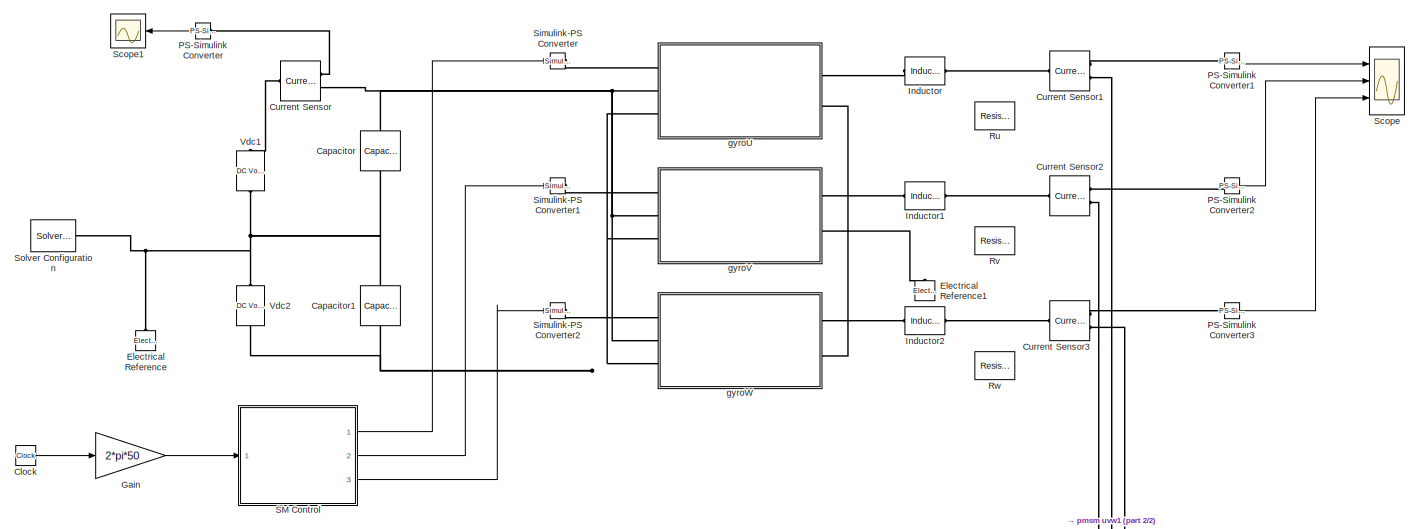
[diagram: root canvas - part 1/2, full width, top band]
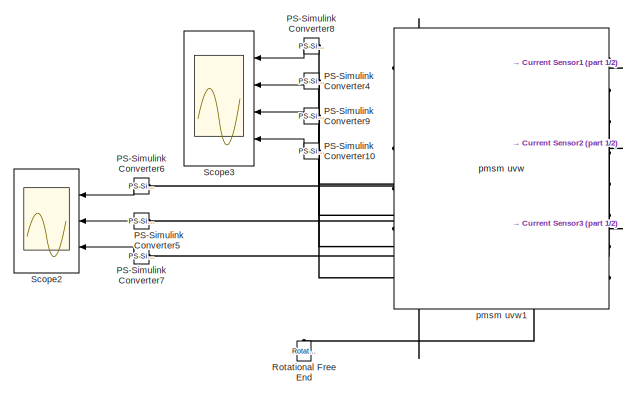
[diagram: root canvas - part 2/2, bottom center region]
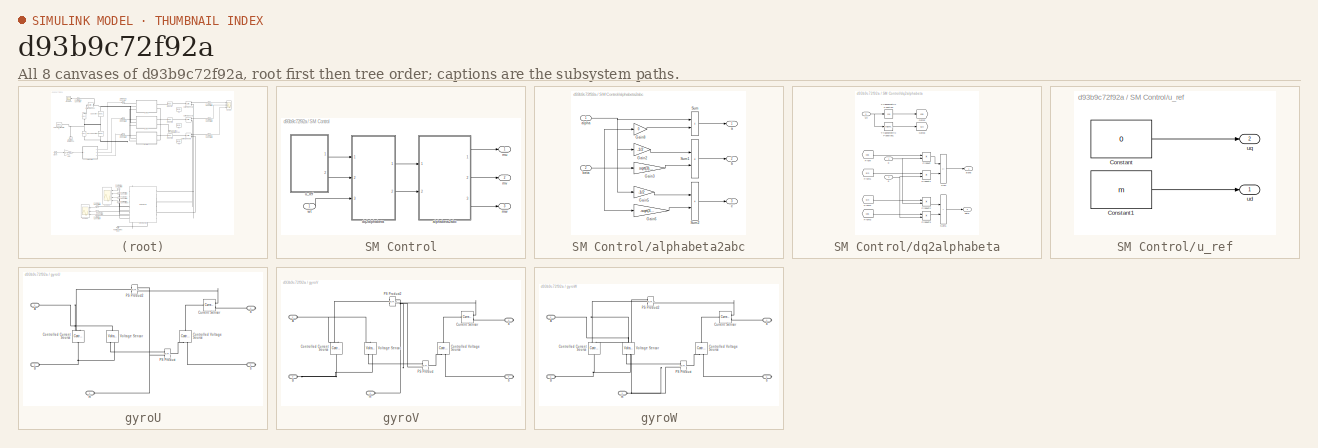
[diagram: thumbnail index - all 8 canvases of the model, root first then tree order]
MODEL slx_d93b9c72f92a
KIND model
CONFIG AbsTol = auto
CONFIG EnableMultiTasking = off
CONFIG FixedStep = auto
CONFIG MaxStep = auto
CONFIG MinStep = auto
CONFIG RelTol = 1e-3
CONFIG SampleTimeConstraint = Unconstrained
CONFIG Solver = daessc
CONFIG SolverName = daessc
CONFIG StartTime = 0.0
CONFIG StopTime = 0.35
BLOCK [Reference] Capacitor  REF=fl_lib/Electrical/Electrical Elements/Capacitor
  NameLocation = left
  Ports = [0, 0, 0, 0, 0, 1, 1]
  SourceBlock = fl_lib/Electrical/Electrical Elements/Capacitor
  SourceProductBaseCode = SS
  SourceType = Capacitor
BLOCK [Reference] Capacitor1  REF=fl_lib/Electrical/Electrical Elements/Capacitor
  NameLocation = left
  Ports = [0, 0, 0, 0, 0, 1, 1]
  SourceBlock = fl_lib/Electrical/Electrical Elements/Capacitor
  SourceProductBaseCode = SS
  SourceType = Capacitor
BLOCK [Clock] Clock
  Decimation = 1
BLOCK [Reference] Current Sensor  REF=fl_lib/Electrical/Electrical Sensors/Current Sensor
  Ports = [0, 0, 0, 0, 0, 1, 2]
  SourceBlock = fl_lib/Electrical/Electrical Sensors/Current Sensor
  SourceProductBaseCode = SS
  SourceType = Current Sensor
BLOCK [Reference] Current Sensor1  REF=fl_lib/Electrical/Electrical Sensors/Current Sensor
  Ports = [0, 0, 0, 0, 0, 1, 2]
  SourceBlock = fl_lib/Electrical/Electrical Sensors/Current Sensor
  SourceProductBaseCode = SS
  SourceType = Current Sensor
BLOCK [Reference] Current Sensor2  REF=fl_lib/Electrical/Electrical Sensors/Current Sensor
  Ports = [0, 0, 0, 0, 0, 1, 2]
  SourceBlock = fl_lib/Electrical/Electrical Sensors/Current Sensor
  SourceProductBaseCode = SS
  SourceType = Current Sensor
BLOCK [Reference] Current Sensor3  REF=fl_lib/Electrical/Electrical Sensors/Current Sensor
  Ports = [0, 0, 0, 0, 0, 1, 2]
  SourceBlock = fl_lib/Electrical/Electrical Sensors/Current Sensor
  SourceProductBaseCode = SS
  SourceType = Current Sensor
BLOCK [Reference] Electrical Reference  REF=fl_lib/Electrical/Electrical Elements/Electrical Reference
  NameLocation = right
  Ports = [0, 0, 0, 0, 0, 1]
  SourceBlock = fl_lib/Electrical/Electrical Elements/Electrical Reference
  SourceProductBaseCode = SS
  SourceType = Electrical Reference
BLOCK [Reference] Electrical Reference1  REF=fl_lib/Electrical/Electrical Elements/Electrical Reference
  NameLocation = right
  Ports = [0, 0, 0, 0, 0, 1]
  SourceBlock = fl_lib/Electrical/Electrical Elements/Electrical Reference
  SourceProductBaseCode = SS
  SourceType = Electrical Reference
BLOCK [Gain] Gain
  Gain = 2*pi*50
BLOCK [Reference] Inductor  REF=fl_lib/Electrical/Electrical Elements/Inductor
  Ports = [0, 0, 0, 0, 0, 1, 1]
  SourceBlock = fl_lib/Electrical/Electrical Elements/Inductor
  SourceProductBaseCode = SS
  SourceType = Inductor
BLOCK [Reference] Inductor1  REF=fl_lib/Electrical/Electrical Elements/Inductor
  Ports = [0, 0, 0, 0, 0, 1, 1]
  SourceBlock = fl_lib/Electrical/Electrical Elements/Inductor
  SourceProductBaseCode = SS
  SourceType = Inductor
BLOCK [Reference] Inductor2  REF=fl_lib/Electrical/Electrical Elements/Inductor
  Ports = [0, 0, 0, 0, 0, 1, 1]
  SourceBlock = fl_lib/Electrical/Electrical Elements/Inductor
  SourceProductBaseCode = SS
  SourceType = Inductor
BLOCK [Reference] PS-Simulink Converter  REF=nesl_utility/PS-Simulink
Converter
  NameLocation = top
  Ports = [0, 1, 0, 0, 0, 1]
  SourceBlock = nesl_utility/PS-Simulink\nConverter
  SourceProductBaseCode = SS
  SourceType = PS-Simulink\nConverter
BLOCK [Reference] PS-Simulink Converter1  REF=nesl_utility/PS-Simulink
Converter
  Ports = [0, 1, 0, 0, 0, 1]
  SourceBlock = nesl_utility/PS-Simulink\nConverter
  SourceProductBaseCode = SS
  SourceType = PS-Simulink\nConverter
BLOCK [Reference] PS-Simulink Converter10  REF=nesl_utility/PS-Simulink
Converter
  NameLocation = top
  Ports = [0, 1, 0, 0, 0, 1]
  SourceBlock = nesl_utility/PS-Simulink\nConverter
  SourceProductBaseCode = SS
  SourceType = PS-Simulink\nConverter
BLOCK [Reference] PS-Simulink Converter2  REF=nesl_utility/PS-Simulink
Converter
  Ports = [0, 1, 0, 0, 0, 1]
  SourceBlock = nesl_utility/PS-Simulink\nConverter
  SourceProductBaseCode = SS
  SourceType = PS-Simulink\nConverter
BLOCK [Reference] PS-Simulink Converter3  REF=nesl_utility/PS-Simulink
Converter
  Ports = [0, 1, 0, 0, 0, 1]
  SourceBlock = nesl_utility/PS-Simulink\nConverter
  SourceProductBaseCode = SS
  SourceType = PS-Simulink\nConverter
BLOCK [Reference] PS-Simulink Converter4  REF=nesl_utility/PS-Simulink
Converter
  NameLocation = top
  Ports = [0, 1, 0, 0, 0, 1]
  SourceBlock = nesl_utility/PS-Simulink\nConverter
  SourceProductBaseCode = SS
  SourceType = PS-Simulink\nConverter
BLOCK [Reference] PS-Simulink Converter5  REF=nesl_utility/PS-Simulink
Converter
  NameLocation = top
  Ports = [0, 1, 0, 0, 0, 1]
  SourceBlock = nesl_utility/PS-Simulink\nConverter
  SourceProductBaseCode = SS
  SourceType = PS-Simulink\nConverter
BLOCK [Reference] PS-Simulink Converter6  REF=nesl_utility/PS-Simulink
Converter
  NameLocation = top
  Ports = [0, 1, 0, 0, 0, 1]
  SourceBlock = nesl_utility/PS-Simulink\nConverter
  SourceProductBaseCode = SS
  SourceType = PS-Simulink\nConverter
BLOCK [Reference] PS-Simulink Converter7  REF=nesl_utility/PS-Simulink
Converter
  NameLocation = top
  Ports = [0, 1, 0, 0, 0, 1]
  SourceBlock = nesl_utility/PS-Simulink\nConverter
  SourceProductBaseCode = SS
  SourceType = PS-Simulink\nConverter
BLOCK [Reference] PS-Simulink Converter8  REF=nesl_utility/PS-Simulink
Converter
  NameLocation = top
  Ports = [0, 1, 0, 0, 0, 1]
  SourceBlock = nesl_utility/PS-Simulink\nConverter
  SourceProductBaseCode = SS
  SourceType = PS-Simulink\nConverter
BLOCK [Reference] PS-Simulink Converter9  REF=nesl_utility/PS-Simulink
Converter
  NameLocation = top
  Ports = [0, 1, 0, 0, 0, 1]
  SourceBlock = nesl_utility/PS-Simulink\nConverter
  SourceProductBaseCode = SS
  SourceType = PS-Simulink\nConverter
BLOCK [Reference] Rotational Free End  REF=fl_lib/Mechanical/Rotational Elements/Rotational Free End
  NameLocation = right
  Ports = [0, 0, 0, 0, 0, 1]
  SourceBlock = fl_lib/Mechanical/Rotational Elements/Rotational Free End
  SourceProductBaseCode = SS
  SourceType = Rotational Free End
BLOCK [Reference] Ru  REF=fl_lib/Electrical/Electrical Elements/Resistor
  Ports = [0, 0, 0, 0, 0, 1, 1]
  SourceBlock = fl_lib/Electrical/Electrical Elements/Resistor
  SourceProductBaseCode = SS
  SourceType = Resistor
BLOCK [Reference] Rv  REF=fl_lib/Electrical/Electrical Elements/Resistor
  Ports = [0, 0, 0, 0, 0, 1, 1]
  SourceBlock = fl_lib/Electrical/Electrical Elements/Resistor
  SourceProductBaseCode = SS
  SourceType = Resistor
BLOCK [Reference] Rw  REF=fl_lib/Electrical/Electrical Elements/Resistor
  Ports = [0, 0, 0, 0, 0, 1, 1]
  SourceBlock = fl_lib/Electrical/Electrical Elements/Resistor
  SourceProductBaseCode = SS
  SourceType = Resistor
BLOCK [SubSystem] SM Control
  Ports = [1, 3]
  RequestExecContextInheritance = off
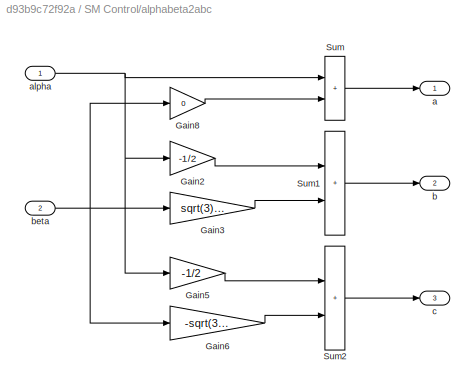
BLOCK [SubSystem] SM Control/alphabeta2abc
  Ports = [2, 3]
  RequestExecContextInheritance = off
BLOCK [Gain] SM Control/alphabeta2abc/Gain2
  Gain = -1/2
BLOCK [Gain] SM Control/alphabeta2abc/Gain3
  Gain = sqrt(3)/2
BLOCK [Gain] SM Control/alphabeta2abc/Gain5
  Gain = -1/2
BLOCK [Gain] SM Control/alphabeta2abc/Gain6
  Gain = -sqrt(3)/2
BLOCK [Gain] SM Control/alphabeta2abc/Gain8
  Gain = 0
BLOCK [Sum] SM Control/alphabeta2abc/Sum
  IconShape = rectangular
  Ports = [2, 1]
BLOCK [Sum] SM Control/alphabeta2abc/Sum1
  IconShape = rectangular
  Ports = [2, 1]
BLOCK [Sum] SM Control/alphabeta2abc/Sum2
  IconShape = rectangular
  Ports = [2, 1]
BLOCK [Outport] SM Control/alphabeta2abc/a
  VectorParamsAs1DForOutWhenUnconnected = off
BLOCK [Inport] SM Control/alphabeta2abc/alpha
BLOCK [Outport] SM Control/alphabeta2abc/b
  Port = 2
  VectorParamsAs1DForOutWhenUnconnected = off
BLOCK [Inport] SM Control/alphabeta2abc/beta
  Port = 2
BLOCK [Outport] SM Control/alphabeta2abc/c
  Port = 3
  VectorParamsAs1DForOutWhenUnconnected = off
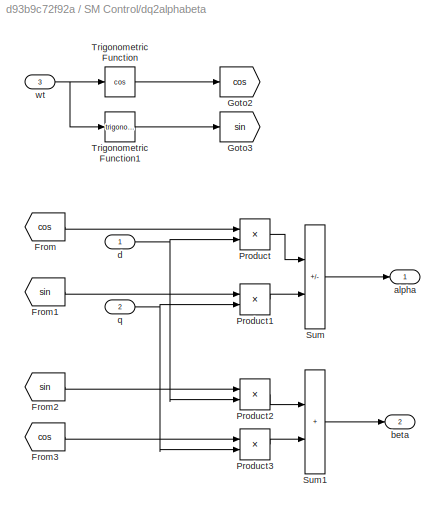
BLOCK [SubSystem] SM Control/dq2alphabeta
  Ports = [3, 2]
  RequestExecContextInheritance = off
BLOCK [From] SM Control/dq2alphabeta/From
  CloseFcn = tagdialog Close
  GotoTag = cos
BLOCK [From] SM Control/dq2alphabeta/From1
  CloseFcn = tagdialog Close
  GotoTag = sin
BLOCK [From] SM Control/dq2alphabeta/From2
  CloseFcn = tagdialog Close
  GotoTag = sin
BLOCK [From] SM Control/dq2alphabeta/From3
  CloseFcn = tagdialog Close
  GotoTag = cos
BLOCK [Goto] SM Control/dq2alphabeta/Goto2
  GotoTag = cos
BLOCK [Goto] SM Control/dq2alphabeta/Goto3
  GotoTag = sin
BLOCK [Product] SM Control/dq2alphabeta/Product
  Ports = [2, 1]
  RndMeth = Zero
BLOCK [Product] SM Control/dq2alphabeta/Product1
  Ports = [2, 1]
  RndMeth = Zero
BLOCK [Product] SM Control/dq2alphabeta/Product2
  Ports = [2, 1]
  RndMeth = Zero
BLOCK [Product] SM Control/dq2alphabeta/Product3
  Ports = [2, 1]
  RndMeth = Zero
BLOCK [Sum] SM Control/dq2alphabeta/Sum
  IconShape = rectangular
  Inputs = +-
  Ports = [2, 1]
BLOCK [Sum] SM Control/dq2alphabeta/Sum1
  IconShape = rectangular
  Ports = [2, 1]
BLOCK [Trigonometry] SM Control/dq2alphabeta/Trigonometric Function
  Operator = cos
  Ports = [1, 1]
BLOCK [Trigonometry] SM Control/dq2alphabeta/Trigonometric Function1
  Ports = [1, 1]
BLOCK [Outport] SM Control/dq2alphabeta/alpha
  VectorParamsAs1DForOutWhenUnconnected = off
BLOCK [Outport] SM Control/dq2alphabeta/beta
  Port = 2
  VectorParamsAs1DForOutWhenUnconnected = off
BLOCK [Inport] SM Control/dq2alphabeta/d
BLOCK [Inport] SM Control/dq2alphabeta/q
  Port = 2
BLOCK [Inport] SM Control/dq2alphabeta/wt
  Port = 3
BLOCK [Outport] SM Control/mu
  VectorParamsAs1DForOutWhenUnconnected = off
BLOCK [Outport] SM Control/mv
  Port = 2
  VectorParamsAs1DForOutWhenUnconnected = off
BLOCK [Outport] SM Control/mw
  Port = 3
  VectorParamsAs1DForOutWhenUnconnected = off
BLOCK [SubSystem] SM Control/u_ref
  Ports = [0, 2]
  RequestExecContextInheritance = off
BLOCK [Constant] SM Control/u_ref/Constant
  SampleTime = ts
  Value = 0
BLOCK [Constant] SM Control/u_ref/Constant1
  SampleTime = ts
  Value = m
BLOCK [Outport] SM Control/u_ref/ud
  VectorParamsAs1DForOutWhenUnconnected = off
BLOCK [Outport] SM Control/u_ref/uq
  Port = 2
  VectorParamsAs1DForOutWhenUnconnected = off
BLOCK [Inport] SM Control/wt
BLOCK [Scope] Scope
  Floating = off
  NumInputPorts = 3
  Ports = [3]
  ScopeSpecificationString = Simulink.scopes.TimeScopeBlockCfg('CurrentConfiguration', extmgr.ConfigurationSet(extmgr.Configuration('Core','General UI',true),extmgr.Configuration('Core','Source UI',true),extmgr.Configuration('Sources','WiredSimulink',true,'SampleTime','ts'),extmgr.Configuration('Visuals','Time Domain',true,'SerializedDisplays',{struct('MinYLimReal','-2566.87141','MaxYLimReal','2933.05625','YLabelReal','','Min...<+1535ch>
BLOCK [Scope] Scope1
  Floating = off
  NameLocation = top
  NumInputPorts = 1
  Ports = [1]
  ScopeSpecificationString = Simulink.scopes.TimeScopeBlockCfg('CurrentConfiguration', extmgr.ConfigurationSet(extmgr.Configuration('Core','General UI',true),extmgr.Configuration('Core','Source UI',true),extmgr.Configuration('Sources','WiredSimulink',true,'SampleTime','ts','DataLoggingVariableName','ScopeData1'),extmgr.Configuration('Visuals','Time Domain',true,'SerializedDisplays',{struct('MinYLimReal','2.87114','MaxYLimReal...<+1475ch>
BLOCK [Scope] Scope2
  Floating = off
  NameLocation = top
  NumInputPorts = 3
  Ports = [3]
  ScopeSpecificationString = Simulink.scopes.TimeScopeBlockCfg('CurrentConfiguration', extmgr.ConfigurationSet(extmgr.Configuration('Core','General UI',true),extmgr.Configuration('Core','Source UI',true),extmgr.Configuration('Sources','WiredSimulink',true,'SampleTime','ts','DataLoggingVariableName','ScopeData1'),extmgr.Configuration('Visuals','Time Domain',true,'SerializedDisplays',{struct('MinYLimReal','-2752.88534','MaxYLim...<+1574ch>
BLOCK [Scope] Scope3
  Floating = off
  NameLocation = top
  NumInputPorts = 4
  Ports = [4]
  ScopeSpecificationString = Simulink.scopes.TimeScopeBlockCfg('CurrentConfiguration', extmgr.ConfigurationSet(extmgr.Configuration('Core','General UI',true),extmgr.Configuration('Core','Source UI',true),extmgr.Configuration('Sources','WiredSimulink',true,'SampleTime','ts','DataLoggingVariableName','ScopeData2'),extmgr.Configuration('Visuals','Time Domain',true,'SerializedDisplays',{struct('MinYLimReal','-4219.99165','MaxYLim...<+2156ch>
BLOCK [Reference] Simulink-PS Converter  REF=nesl_utility/Simulink-PS
Converter
  Ports = [1, 0, 0, 0, 0, 0, 1]
  SourceBlock = nesl_utility/Simulink-PS\nConverter
  SourceProductBaseCode = SS
  SourceType = Simulink-PS\nConverter
BLOCK [Reference] Simulink-PS Converter1  REF=nesl_utility/Simulink-PS
Converter
  Ports = [1, 0, 0, 0, 0, 0, 1]
  SourceBlock = nesl_utility/Simulink-PS\nConverter
  SourceProductBaseCode = SS
  SourceType = Simulink-PS\nConverter
BLOCK [Reference] Simulink-PS Converter2  REF=nesl_utility/Simulink-PS
Converter
  Ports = [1, 0, 0, 0, 0, 0, 1]
  SourceBlock = nesl_utility/Simulink-PS\nConverter
  SourceProductBaseCode = SS
  SourceType = Simulink-PS\nConverter
BLOCK [Reference] Solver Configuration  REF=nesl_utility/Solver
Configuration
  Ports = [0, 0, 0, 0, 0, 0, 1]
  SourceBlock = nesl_utility/Solver\nConfiguration
  SourceProductBaseCode = SS
  SourceType = Solver\nConfiguration
BLOCK [Reference] Vdc1  REF=fl_lib/Electrical/Electrical Sources/DC Voltage Source
  NameLocation = right
  Ports = [0, 0, 0, 0, 0, 1, 1]
  SourceBlock = fl_lib/Electrical/Electrical Sources/DC Voltage Source
  SourceProductBaseCode = SS
  SourceType = DC Voltage Source
BLOCK [Reference] Vdc2  REF=fl_lib/Electrical/Electrical Sources/DC Voltage Source
  NameLocation = right
  Ports = [0, 0, 0, 0, 0, 1, 1]
  SourceBlock = fl_lib/Electrical/Electrical Sources/DC Voltage Source
  SourceProductBaseCode = SS
  SourceType = DC Voltage Source
BLOCK [SubSystem] gyroU
  Ports = [0, 0, 0, 0, 0, 3, 2]
  RequestExecContextInheritance = off
BLOCK [PMIOPort] gyroU/A
  Port = 2
  Side = Left
BLOCK [PMIOPort] gyroU/B
  Port = 3
  Side = Left
BLOCK [Reference] gyroU/Controlled Current Source  REF=fl_lib/Electrical/Electrical Sources/Controlled Current
Source
  NameLocation = left
  Ports = [0, 0, 0, 0, 0, 1, 2]
  SourceBlock = fl_lib/Electrical/Electrical Sources/Controlled Current\nSource
  SourceProductBaseCode = SS
  SourceType = Controlled Current\nSource
BLOCK [Reference] gyroU/Controlled Voltage Source  REF=fl_lib/Electrical/Electrical Sources/Controlled Voltage
Source
  NameLocation = right
  Ports = [0, 0, 0, 0, 0, 1, 2]
  SourceBlock = fl_lib/Electrical/Electrical Sources/Controlled Voltage\nSource
  SourceProductBaseCode = SS
  SourceType = Controlled Voltage\nSource
BLOCK [Reference] gyroU/Current Sensor  REF=fl_lib/Electrical/Electrical Sensors/Current Sensor
  Ports = [0, 0, 0, 0, 0, 1, 2]
  SourceBlock = fl_lib/Electrical/Electrical Sensors/Current Sensor
  SourceProductBaseCode = SS
  SourceType = Current Sensor
BLOCK [Reference] gyroU/PS Product  REF=fl_lib/Physical Signals/Functions/PS Product
  Ports = [0, 0, 0, 0, 0, 2, 1]
  SourceBlock = fl_lib/Physical Signals/Functions/PS Product
  SourceProductBaseCode = SS
  SourceType = PS Product
BLOCK [Reference] gyroU/PS Product2  REF=fl_lib/Physical Signals/Functions/PS Product
  NameLocation = top
  Ports = [0, 0, 0, 0, 0, 2, 1]
  SourceBlock = fl_lib/Physical Signals/Functions/PS Product
  SourceProductBaseCode = SS
  SourceType = PS Product
BLOCK [Reference] gyroU/Voltage Sensor  REF=fl_lib/Electrical/Electrical Sensors/Voltage Sensor
  NameLocation = right
  Ports = [0, 0, 0, 0, 0, 1, 2]
  SourceBlock = fl_lib/Electrical/Electrical Sensors/Voltage Sensor
  SourceProductBaseCode = SS
  SourceType = Voltage Sensor
BLOCK [PMIOPort] gyroU/a
  Port = 4
  Side = Right
BLOCK [PMIOPort] gyroU/b
  Port = 5
  Side = Right
BLOCK [PMIOPort] gyroU/m
  Side = Left
BLOCK [SubSystem] gyroV
  Ports = [0, 0, 0, 0, 0, 3, 2]
  RequestExecContextInheritance = off
BLOCK [PMIOPort] gyroV/A
  Port = 2
  Side = Left
BLOCK [PMIOPort] gyroV/B
  Port = 3
  Side = Left
BLOCK [Reference] gyroV/Controlled Current Source  REF=fl_lib/Electrical/Electrical Sources/Controlled Current
Source
  NameLocation = left
  Ports = [0, 0, 0, 0, 0, 1, 2]
  SourceBlock = fl_lib/Electrical/Electrical Sources/Controlled Current\nSource
  SourceProductBaseCode = SS
  SourceType = Controlled Current\nSource
BLOCK [Reference] gyroV/Controlled Voltage Source  REF=fl_lib/Electrical/Electrical Sources/Controlled Voltage
Source
  NameLocation = right
  Ports = [0, 0, 0, 0, 0, 1, 2]
  SourceBlock = fl_lib/Electrical/Electrical Sources/Controlled Voltage\nSource
  SourceProductBaseCode = SS
  SourceType = Controlled Voltage\nSource
BLOCK [Reference] gyroV/Current Sensor  REF=fl_lib/Electrical/Electrical Sensors/Current Sensor
  Ports = [0, 0, 0, 0, 0, 1, 2]
  SourceBlock = fl_lib/Electrical/Electrical Sensors/Current Sensor
  SourceProductBaseCode = SS
  SourceType = Current Sensor
BLOCK [Reference] gyroV/PS Product  REF=fl_lib/Physical Signals/Functions/PS Product
  Ports = [0, 0, 0, 0, 0, 2, 1]
  SourceBlock = fl_lib/Physical Signals/Functions/PS Product
  SourceProductBaseCode = SS
  SourceType = PS Product
BLOCK [Reference] gyroV/PS Product2  REF=fl_lib/Physical Signals/Functions/PS Product
  NameLocation = top
  Ports = [0, 0, 0, 0, 0, 2, 1]
  SourceBlock = fl_lib/Physical Signals/Functions/PS Product
  SourceProductBaseCode = SS
  SourceType = PS Product
BLOCK [Reference] gyroV/Voltage Sensor  REF=fl_lib/Electrical/Electrical Sensors/Voltage Sensor
  NameLocation = right
  Ports = [0, 0, 0, 0, 0, 1, 2]
  SourceBlock = fl_lib/Electrical/Electrical Sensors/Voltage Sensor
  SourceProductBaseCode = SS
  SourceType = Voltage Sensor
BLOCK [PMIOPort] gyroV/a
  Port = 4
  Side = Right
BLOCK [PMIOPort] gyroV/b
  Port = 5
  Side = Right
BLOCK [PMIOPort] gyroV/m
  Side = Left
BLOCK [SubSystem] gyroW
  Ports = [0, 0, 0, 0, 0, 3, 2]
  RequestExecContextInheritance = off
BLOCK [PMIOPort] gyroW/A
  Port = 2
  Side = Left
BLOCK [PMIOPort] gyroW/B
  Port = 3
  Side = Left
BLOCK [Reference] gyroW/Controlled Current Source  REF=fl_lib/Electrical/Electrical Sources/Controlled Current
Source
  NameLocation = left
  Ports = [0, 0, 0, 0, 0, 1, 2]
  SourceBlock = fl_lib/Electrical/Electrical Sources/Controlled Current\nSource
  SourceProductBaseCode = SS
  SourceType = Controlled Current\nSource
BLOCK [Reference] gyroW/Controlled Voltage Source  REF=fl_lib/Electrical/Electrical Sources/Controlled Voltage
Source
  NameLocation = right
  Ports = [0, 0, 0, 0, 0, 1, 2]
  SourceBlock = fl_lib/Electrical/Electrical Sources/Controlled Voltage\nSource
  SourceProductBaseCode = SS
  SourceType = Controlled Voltage\nSource
BLOCK [Reference] gyroW/Current Sensor  REF=fl_lib/Electrical/Electrical Sensors/Current Sensor
  Ports = [0, 0, 0, 0, 0, 1, 2]
  SourceBlock = fl_lib/Electrical/Electrical Sensors/Current Sensor
  SourceProductBaseCode = SS
  SourceType = Current Sensor
BLOCK [Reference] gyroW/PS Product  REF=fl_lib/Physical Signals/Functions/PS Product
  Ports = [0, 0, 0, 0, 0, 2, 1]
  SourceBlock = fl_lib/Physical Signals/Functions/PS Product
  SourceProductBaseCode = SS
  SourceType = PS Product
BLOCK [Reference] gyroW/PS Product2  REF=fl_lib/Physical Signals/Functions/PS Product
  NameLocation = top
  Ports = [0, 0, 0, 0, 0, 2, 1]
  SourceBlock = fl_lib/Physical Signals/Functions/PS Product
  SourceProductBaseCode = SS
  SourceType = PS Product
BLOCK [Reference] gyroW/Voltage Sensor  REF=fl_lib/Electrical/Electrical Sensors/Voltage Sensor
  NameLocation = right
  Ports = [0, 0, 0, 0, 0, 1, 2]
  SourceBlock = fl_lib/Electrical/Electrical Sensors/Voltage Sensor
  SourceProductBaseCode = SS
  SourceType = Voltage Sensor
BLOCK [PMIOPort] gyroW/a
  Port = 4
  Side = Right
BLOCK [PMIOPort] gyroW/b
  Port = 5
  Side = Right
BLOCK [PMIOPort] gyroW/m
  Side = Left
BLOCK [Reference] pmsm uvw1  REF=pmsm_uvw_lib/pmsm uvw
  NameLocation = top
  Ports = [0, 0, 0, 0, 0, 6, 8]
  SourceBlock = pmsm_uvw_lib/pmsm uvw
  SourceType = pmsm uvw
LINE Clock:1 -> Gain:1
LINE Gain:1 -> SM Control:1
LINE PS-Simulink Converter10:1 -> Scope3:4
LINE PS-Simulink Converter1:1 -> Scope:1
LINE PS-Simulink Converter2:1 -> Scope:2
LINE PS-Simulink Converter3:1 -> Scope:3
LINE PS-Simulink Converter4:1 -> Scope3:2
LINE PS-Simulink Converter5:1 -> Scope2:2
LINE PS-Simulink Converter6:1 -> Scope2:1
LINE PS-Simulink Converter7:1 -> Scope2:3
LINE PS-Simulink Converter8:1 -> Scope3:1
LINE PS-Simulink Converter9:1 -> Scope3:3
LINE PS-Simulink Converter:1 -> Scope1:1
LINE SM Control/alphabeta2abc/Gain2:1 -> SM Control/alphabeta2abc/Sum1:1
LINE SM Control/alphabeta2abc/Gain3:1 -> SM Control/alphabeta2abc/Sum1:2
LINE SM Control/alphabeta2abc/Gain5:1 -> SM Control/alphabeta2abc/Sum2:1
LINE SM Control/alphabeta2abc/Gain6:1 -> SM Control/alphabeta2abc/Sum2:2
LINE SM Control/alphabeta2abc/Gain8:1 -> SM Control/alphabeta2abc/Sum:2
LINE SM Control/alphabeta2abc/Sum1:1 -> SM Control/alphabeta2abc/b:1
LINE SM Control/alphabeta2abc/Sum2:1 -> SM Control/alphabeta2abc/c:1
LINE SM Control/alphabeta2abc/Sum:1 -> SM Control/alphabeta2abc/a:1
NET SM Control/alphabeta2abc/alpha:1 -> SM Control/alphabeta2abc/Gain2:1, SM Control/alphabeta2abc/Gain5:1, SM Control/alphabeta2abc/Sum:1
NET SM Control/alphabeta2abc/beta:1 -> SM Control/alphabeta2abc/Gain3:1, SM Control/alphabeta2abc/Gain6:1, SM Control/alphabeta2abc/Gain8:1
LINE SM Control/alphabeta2abc:1 -> SM Control/mu:1
LINE SM Control/alphabeta2abc:2 -> SM Control/mv:1
LINE SM Control/alphabeta2abc:3 -> SM Control/mw:1
LINE SM Control/dq2alphabeta/From1:1 -> SM Control/dq2alphabeta/Product1:1
LINE SM Control/dq2alphabeta/From2:1 -> SM Control/dq2alphabeta/Product2:1
LINE SM Control/dq2alphabeta/From3:1 -> SM Control/dq2alphabeta/Product3:1
LINE SM Control/dq2alphabeta/From:1 -> SM Control/dq2alphabeta/Product:1
LINE SM Control/dq2alphabeta/Product1:1 -> SM Control/dq2alphabeta/Sum:2
LINE SM Control/dq2alphabeta/Product2:1 -> SM Control/dq2alphabeta/Sum1:1
LINE SM Control/dq2alphabeta/Product3:1 -> SM Control/dq2alphabeta/Sum1:2
LINE SM Control/dq2alphabeta/Product:1 -> SM Control/dq2alphabeta/Sum:1
LINE SM Control/dq2alphabeta/Sum1:1 -> SM Control/dq2alphabeta/beta:1
LINE SM Control/dq2alphabeta/Sum:1 -> SM Control/dq2alphabeta/alpha:1
LINE SM Control/dq2alphabeta/Trigonometric Function1:1 -> SM Control/dq2alphabeta/Goto3:1
LINE SM Control/dq2alphabeta/Trigonometric Function:1 -> SM Control/dq2alphabeta/Goto2:1
NET SM Control/dq2alphabeta/d:1 -> SM Control/dq2alphabeta/Product2:2, SM Control/dq2alphabeta/Product:2
NET SM Control/dq2alphabeta/q:1 -> SM Control/dq2alphabeta/Product1:2, SM Control/dq2alphabeta/Product3:2
NET SM Control/dq2alphabeta/wt:1 -> SM Control/dq2alphabeta/Trigonometric Function1:1, SM Control/dq2alphabeta/Trigonometric Function:1
LINE SM Control/dq2alphabeta:1 -> SM Control/alphabeta2abc:1
LINE SM Control/dq2alphabeta:2 -> SM Control/alphabeta2abc:2
LINE SM Control/u_ref/Constant1:1 -> SM Control/u_ref/ud:1
LINE SM Control/u_ref/Constant:1 -> SM Control/u_ref/uq:1
LINE SM Control/u_ref:1 -> SM Control/dq2alphabeta:1
LINE SM Control/u_ref:2 -> SM Control/dq2alphabeta:2
LINE SM Control/wt:1 -> SM Control/dq2alphabeta:3
LINE SM Control:1 -> Simulink-PS Converter:1
LINE SM Control:2 -> Simulink-PS Converter1:1
LINE SM Control:3 -> Simulink-PS Converter2:1
PNET net1: Capacitor1:LConn1 -- Capacitor:RConn1 -- Electrical Reference:LConn1 -- Solver Configuration:RConn1 -- Vdc1:RConn1 -- Vdc2:LConn1
PNET net2: Capacitor1:RConn1 -- Vdc2:RConn1 -- gyroU:LConn3 -- gyroV:LConn3 -- gyroW:LConn3
PNET net3: Capacitor:LConn1 -- Current Sensor:RConn2 -- gyroU:LConn2 -- gyroV:LConn2 -- gyroW:LConn2
PLINE Current Sensor1:LConn1 -- Inductor:RConn1
PLINE Current Sensor1:RConn1 -- PS-Simulink Converter1:LConn1
PLINE Current Sensor1:RConn2 -- pmsm uvw1:LConn1
PLINE Current Sensor2:LConn1 -- Inductor1:RConn1
PLINE Current Sensor2:RConn1 -- PS-Simulink Converter2:LConn1
PLINE Current Sensor2:RConn2 -- pmsm uvw1:LConn3
PLINE Current Sensor3:LConn1 -- Inductor2:RConn1
PLINE Current Sensor3:RConn1 -- PS-Simulink Converter3:LConn1
PLINE Current Sensor3:RConn2 -- pmsm uvw1:LConn5
PLINE Current Sensor:LConn1 -- Vdc1:LConn1
PLINE Current Sensor:RConn1 -- PS-Simulink Converter:LConn1
PNET net4: Electrical Reference1:LConn1 -- gyroU:RConn2 -- gyroV:RConn2 -- gyroW:RConn2
PLINE Inductor1:LConn1 -- gyroV:RConn1
PLINE Inductor2:LConn1 -- gyroW:RConn1
PLINE Inductor:LConn1 -- gyroU:RConn1
PLINE PS-Simulink Converter10:LConn1 -- pmsm uvw1:RConn5
PLINE PS-Simulink Converter4:LConn1 -- pmsm uvw1:RConn7
PLINE PS-Simulink Converter5:LConn1 -- pmsm uvw1:RConn3
PLINE PS-Simulink Converter6:LConn1 -- pmsm uvw1:RConn4
PLINE PS-Simulink Converter7:LConn1 -- pmsm uvw1:RConn2
PLINE PS-Simulink Converter8:LConn1 -- pmsm uvw1:RConn8
PLINE PS-Simulink Converter9:LConn1 -- pmsm uvw1:RConn6
PLINE Rotational Free End:LConn1 -- pmsm uvw1:RConn1
PLINE Simulink-PS Converter1:RConn1 -- gyroV:LConn1
PLINE Simulink-PS Converter2:RConn1 -- gyroW:LConn1
PLINE Simulink-PS Converter:RConn1 -- gyroU:LConn1
PNET net5: gyroU/A:RConn1 -- gyroU/Controlled Current Source:RConn2 -- gyroU/Voltage Sensor:LConn1
PNET net6: gyroU/B:RConn1 -- gyroU/Controlled Current Source:LConn1 -- gyroU/Voltage Sensor:RConn2
PLINE gyroU/Controlled Current Source:RConn1 -- gyroU/PS Product2:RConn1
PLINE gyroU/Controlled Voltage Source:LConn1 -- gyroU/Current Sensor:LConn1
PLINE gyroU/Controlled Voltage Source:RConn1 -- gyroU/PS Product:RConn1
PLINE gyroU/Controlled Voltage Source:RConn2 -- gyroU/b:RConn1
PLINE gyroU/Current Sensor:RConn1 -- gyroU/PS Product2:LConn2
PLINE gyroU/Current Sensor:RConn2 -- gyroU/a:RConn1
PNET net7: gyroU/PS Product2:LConn1 -- gyroU/PS Product:LConn2 -- gyroU/m:RConn1
PLINE gyroU/PS Product:LConn1 -- gyroU/Voltage Sensor:RConn1
PNET net8: gyroV/A:RConn1 -- gyroV/Controlled Current Source:RConn2 -- gyroV/Voltage Sensor:LConn1
PNET net9: gyroV/B:RConn1 -- gyroV/Controlled Current Source:LConn1 -- gyroV/Voltage Sensor:RConn2
PLINE gyroV/Controlled Current Source:RConn1 -- gyroV/PS Product2:RConn1
PLINE gyroV/Controlled Voltage Source:LConn1 -- gyroV/Current Sensor:LConn1
PLINE gyroV/Controlled Voltage Source:RConn1 -- gyroV/PS Product:RConn1
PLINE gyroV/Controlled Voltage Source:RConn2 -- gyroV/b:RConn1
PLINE gyroV/Current Sensor:RConn1 -- gyroV/PS Product2:LConn2
PLINE gyroV/Current Sensor:RConn2 -- gyroV/a:RConn1
PNET net10: gyroV/PS Product2:LConn1 -- gyroV/PS Product:LConn2 -- gyroV/m:RConn1
PLINE gyroV/PS Product:LConn1 -- gyroV/Voltage Sensor:RConn1
PNET net11: gyroW/A:RConn1 -- gyroW/Controlled Current Source:RConn2 -- gyroW/Voltage Sensor:LConn1
PNET net12: gyroW/B:RConn1 -- gyroW/Controlled Current Source:LConn1 -- gyroW/Voltage Sensor:RConn2
PLINE gyroW/Controlled Current Source:RConn1 -- gyroW/PS Product2:RConn1
PLINE gyroW/Controlled Voltage Source:LConn1 -- gyroW/Current Sensor:LConn1
PLINE gyroW/Controlled Voltage Source:RConn1 -- gyroW/PS Product:RConn1
PLINE gyroW/Controlled Voltage Source:RConn2 -- gyroW/b:RConn1
PLINE gyroW/Current Sensor:RConn1 -- gyroW/PS Product2:LConn2
PLINE gyroW/Current Sensor:RConn2 -- gyroW/a:RConn1
PNET net13: gyroW/PS Product2:LConn1 -- gyroW/PS Product:LConn2 -- gyroW/m:RConn1
PLINE gyroW/PS Product:LConn1 -- gyroW/Voltage Sensor:RConn1
PNET net14: pmsm uvw1:LConn2 -- pmsm uvw1:LConn4 -- pmsm uvw1:LConn6
note: NET lines group one-source signal fan-out (src -> all destinations, sorted); 1:1 wires keep LINE; PNET lines group multi-terminal physical nets as a canonical sorted terminal list (undirected conserving connections); 2-terminal nets keep the pairwise PLINE form
